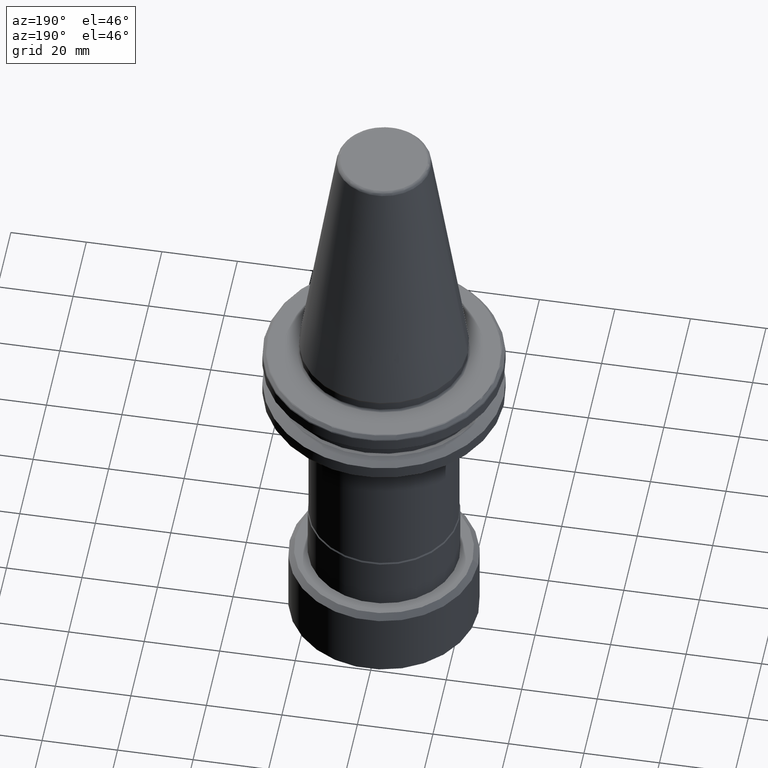
[diagram: clean part render]
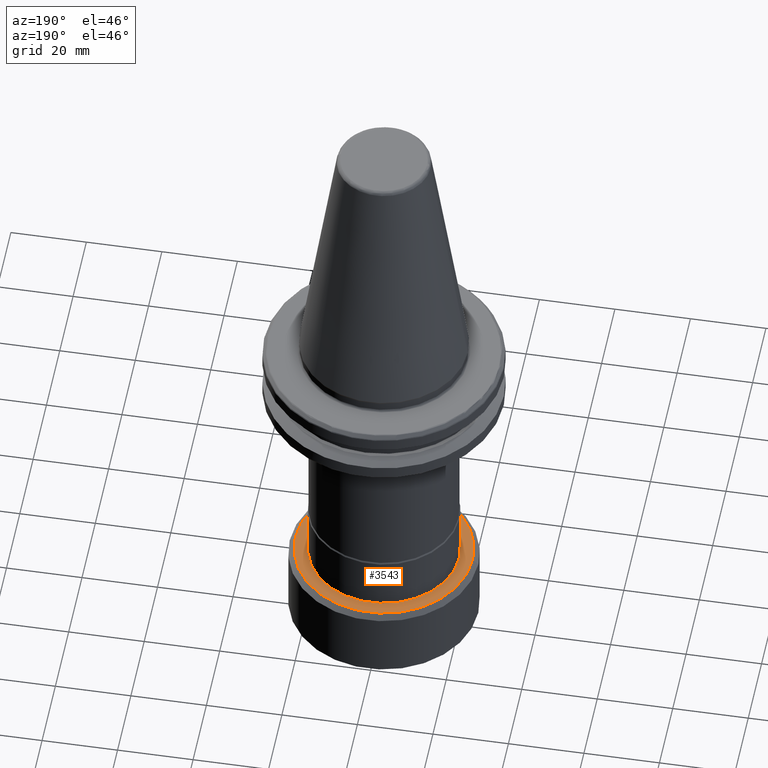
[diagram: same view with one face highlighted and labeled with its STEP entity id]
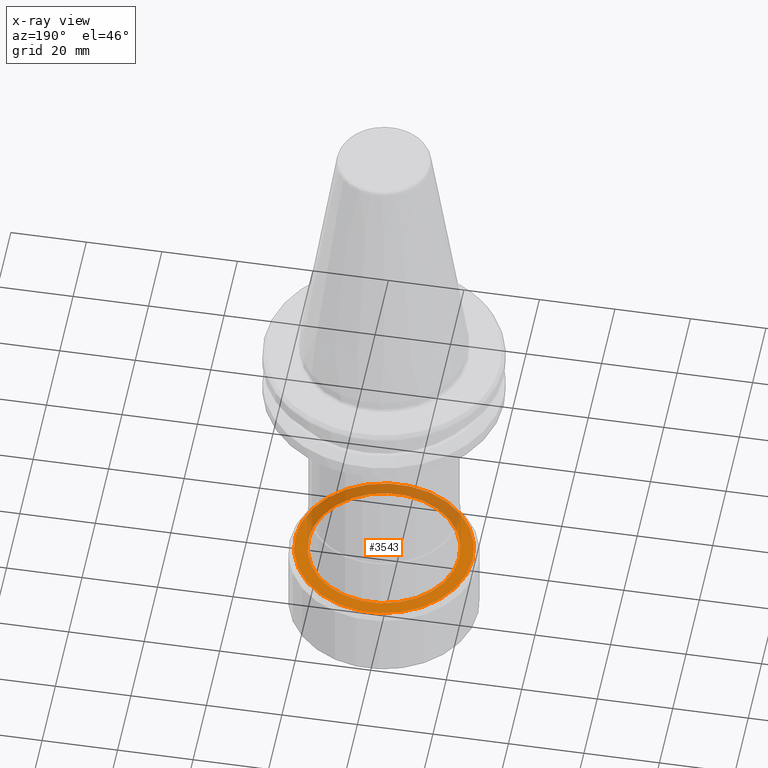
[diagram: x-ray of the same camera — body ghosted, the highlighted face saturated]
A machine part, auxiliary view. The second image highlights one B-rep face of the part: STEP entity #3543.
The next image is the same camera in x-ray: the body ghosted, the highlighted face saturated — about 36% of this face is hidden behind the body in this view.
In plain terms, the highlighted planar face has unit normal (0, 0, 1).
Its self-contained STEP definition (entity closure, byte-faithful):
#149 = ORIENTED_EDGE ( 'NONE', *, *, #1391, .T. ) ;
#231 = AXIS2_PLACEMENT_3D ( 'NONE', #3480, #3598, #3568 ) ;
#327 = AXIS2_PLACEMENT_3D ( 'NONE', #3343, #3341, #3335 ) ;
#489 = VERTEX_POINT ( 'NONE', #1340 ) ;
#777 = AXIS2_PLACEMENT_3D ( 'NONE', #4062, #2490, #2616 ) ;
#972 = AXIS2_PLACEMENT_3D ( 'NONE', #1567, #1902, #3329 ) ;
#1134 = ORIENTED_EDGE ( 'NONE', *, *, #3602, .F. ) ;
#1340 = CARTESIAN_POINT ( 'NONE',  ( -19.94999999999999900, 0.0000000000000000000, -77.49999999999998600 ) ) ;
#1364 = VERTEX_POINT ( 'NONE', #3396 ) ;
#1391 = EDGE_CURVE ( 'NONE', #489, #1703, #2859, .T. ) ;
#1567 = CARTESIAN_POINT ( 'NONE',  ( 0.0000000000000000000, 0.0000000000000000000, -77.49999999999998600 ) ) ;
#1703 = VERTEX_POINT ( 'NONE', #2432 ) ;
#1789 = DIRECTION ( 'NONE',  ( -1.000000000000000000, 0.0000000000000000000, 0.0000000000000000000 ) ) ;
#1798 = DIRECTION ( 'NONE',  ( -0.0000000000000000000, -0.0000000000000000000, -1.000000000000000000 ) ) ;
#1804 = CARTESIAN_POINT ( 'NONE',  ( 0.0000000000000000000, 0.0000000000000000000, -77.49999999999998600 ) ) ;
#1881 = FACE_OUTER_BOUND ( 'NONE', #2768, .T. ) ;
#1902 = DIRECTION ( 'NONE',  ( -0.0000000000000000000, -0.0000000000000000000, -1.000000000000000000 ) ) ;
#2147 = CIRCLE ( 'NONE', #3588, 23.49999999999999300 ) ;
#2159 = CIRCLE ( 'NONE', #231, 19.94999999999999900 ) ;
#2243 = ORIENTED_EDGE ( 'NONE', *, *, #4003, .T. ) ;
#2432 = CARTESIAN_POINT ( 'NONE',  ( 19.94999999999999900, 2.443170364298969400E-015, -77.49999999999998600 ) ) ;
#2490 = DIRECTION ( 'NONE',  ( 0.0000000000000000000, 0.0000000000000000000, 1.000000000000000000 ) ) ;
#2509 = ORIENTED_EDGE ( 'NONE', *, *, #2920, .F. ) ;
#2616 = DIRECTION ( 'NONE',  ( 1.000000000000000000, 0.0000000000000000000, -0.0000000000000000000 ) ) ;
#2708 = EDGE_LOOP ( 'NONE', ( #149, #2243 ) ) ;
#2768 = EDGE_LOOP ( 'NONE', ( #1134, #2509 ) ) ;
#2859 = CIRCLE ( 'NONE', #327, 19.94999999999999900 ) ;
#2920 = EDGE_CURVE ( 'NONE', #3876, #1364, #2147, .T. ) ;
#2934 = CIRCLE ( 'NONE', #972, 23.49999999999999300 ) ;
#2983 = FACE_BOUND ( 'NONE', #2708, .T. ) ;
#3221 = PLANE ( 'NONE',  #777 ) ;
#3266 = CARTESIAN_POINT ( 'NONE',  ( 23.49999999999999300, 2.969768487932331300E-015, -77.49999999999998600 ) ) ;
#3329 = DIRECTION ( 'NONE',  ( -1.000000000000000000, 0.0000000000000000000, 0.0000000000000000000 ) ) ;
#3335 = DIRECTION ( 'NONE',  ( -1.000000000000000000, 0.0000000000000000000, 0.0000000000000000000 ) ) ;
#3341 = DIRECTION ( 'NONE',  ( -0.0000000000000000000, -0.0000000000000000000, -1.000000000000000000 ) ) ;
#3343 = CARTESIAN_POINT ( 'NONE',  ( 0.0000000000000000000, 0.0000000000000000000, -77.49999999999998600 ) ) ;
#3396 = CARTESIAN_POINT ( 'NONE',  ( -23.49999999999999300, 0.0000000000000000000, -77.49999999999998600 ) ) ;
#3480 = CARTESIAN_POINT ( 'NONE',  ( 0.0000000000000000000, 0.0000000000000000000, -77.49999999999998600 ) ) ;
#3543 = ADVANCED_FACE ( 'NONE', ( #2983, #1881 ), #3221, .T. ) ;
#3568 = DIRECTION ( 'NONE',  ( -1.000000000000000000, 0.0000000000000000000, 0.0000000000000000000 ) ) ;
#3588 = AXIS2_PLACEMENT_3D ( 'NONE', #1804, #1798, #1789 ) ;
#3598 = DIRECTION ( 'NONE',  ( -0.0000000000000000000, -0.0000000000000000000, -1.000000000000000000 ) ) ;
#3602 = EDGE_CURVE ( 'NONE', #1364, #3876, #2934, .T. ) ;
#3876 = VERTEX_POINT ( 'NONE', #3266 ) ;
#4003 = EDGE_CURVE ( 'NONE', #1703, #489, #2159, .T. ) ;
#4062 = CARTESIAN_POINT ( 'NONE',  ( 0.0000000000000000000, 0.0000000000000000000, -77.49999999999998600 ) ) ;